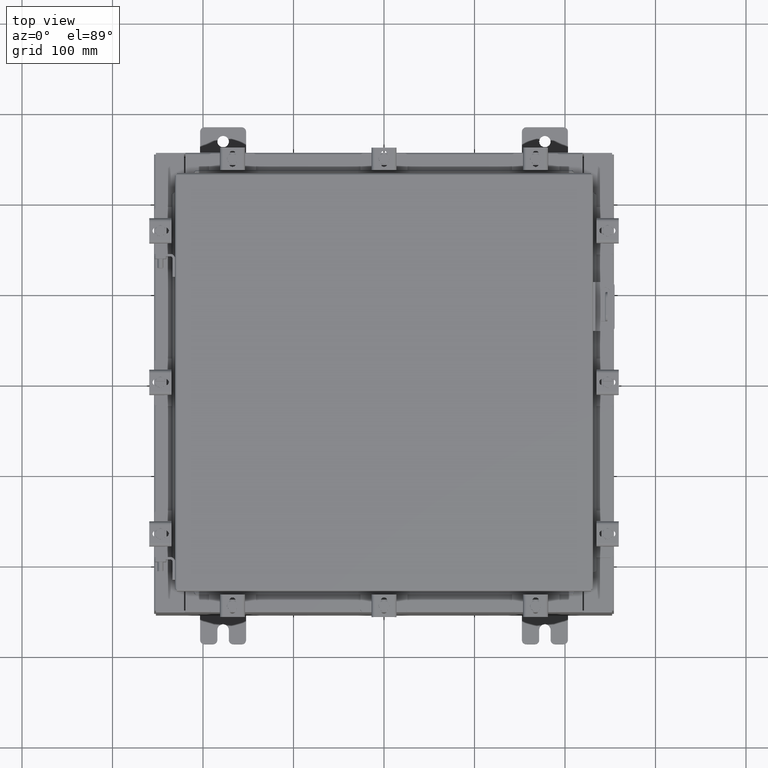
[diagram: clean part render]
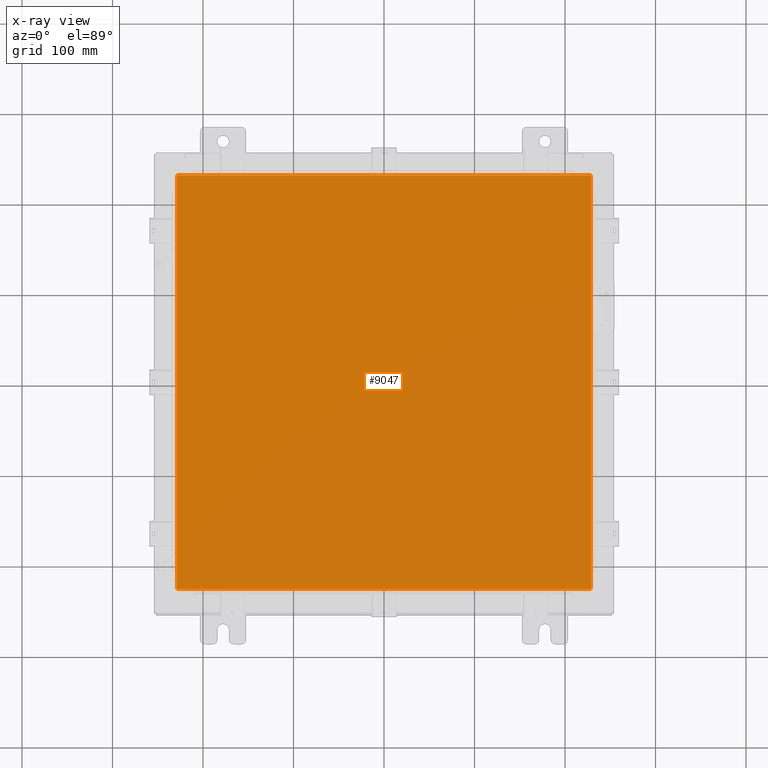
[diagram: x-ray — body ghosted, one internal face saturated and labeled with its STEP entity id]
A machine part, top view, then the same camera in x-ray: the body is ghosted and one INTERNAL B-rep face — a face not visible from any outside direction — is saturated and labeled: STEP entity #9047.
In plain terms, the highlighted planar face has unit normal (0, 0, -1).
Its self-contained STEP definition (entity closure, byte-faithful):
#1477 = CARTESIAN_POINT ( 'NONE',  ( 9.006300000000001300, 9.006299999999999500, -0.07470000000000015500 ) ) ;
#1818 = CARTESIAN_POINT ( 'NONE',  ( 9.006299999999999500, 9.006299999999999500, -0.07470000000000015500 ) ) ;
#2196 = EDGE_CURVE ( 'NONE', #15604, #19512, #5671, .T. ) ;
#3299 = LINE ( 'NONE', #1477, #21381 ) ;
#4103 = EDGE_CURVE ( 'NONE', #17916, #15604, #22260, .T. ) ;
#5132 = VECTOR ( 'NONE', #20630, 39.37007874015748100 ) ;
#5671 = LINE ( 'NONE', #22254, #19098 ) ;
#8186 = EDGE_CURVE ( 'NONE', #11100, #17916, #19101, .T. ) ;
#8306 = AXIS2_PLACEMENT_3D ( 'NONE', #17397, #10435, #10557 ) ;
#8368 = VECTOR ( 'NONE', #21778, 39.37007874015748100 ) ;
#8503 = CARTESIAN_POINT ( 'NONE',  ( -9.006299999999997800, -9.006299999999999500, -0.07470000000000015500 ) ) ;
#9000 = EDGE_LOOP ( 'NONE', ( #18463, #20192, #14112, #16232 ) ) ;
#9047 = ADVANCED_FACE ( 'NONE', ( #21236 ), #22533, .T. ) ;
#10078 = CARTESIAN_POINT ( 'NONE',  ( -9.006299999999997800, 9.006299999999999500, -0.07470000000000125200 ) ) ;
#10335 = CARTESIAN_POINT ( 'NONE',  ( -9.006299999999997800, 9.006299999999997800, -0.07470000000000015500 ) ) ;
#10435 = DIRECTION ( 'NONE',  ( 0.0000000000000000000, 0.0000000000000000000, -1.000000000000000000 ) ) ;
#10557 = DIRECTION ( 'NONE',  ( -1.000000000000000000, 0.0000000000000000000, -0.0000000000000000000 ) ) ;
#11100 = VERTEX_POINT ( 'NONE', #10335 ) ;
#13325 = DIRECTION ( 'NONE',  ( 0.0000000000000000000, 1.000000000000000000, 0.0000000000000000000 ) ) ;
#14112 = ORIENTED_EDGE ( 'NONE', *, *, #8186, .F. ) ;
#14416 = CARTESIAN_POINT ( 'NONE',  ( 9.006300000000001300, -9.006299999999999500, -0.07470000000000015500 ) ) ;
#15604 = VERTEX_POINT ( 'NONE', #14416 ) ;
#16232 = ORIENTED_EDGE ( 'NONE', *, *, #18547, .F. ) ;
#17397 = CARTESIAN_POINT ( 'NONE',  ( 0.0000000000000000000, 0.0000000000000000000, -0.07470000000000015500 ) ) ;
#17916 = VERTEX_POINT ( 'NONE', #8503 ) ;
#18463 = ORIENTED_EDGE ( 'NONE', *, *, #2196, .F. ) ;
#18547 = EDGE_CURVE ( 'NONE', #19512, #11100, #3299, .T. ) ;
#19098 = VECTOR ( 'NONE', #13325, 39.37007874015748100 ) ;
#19101 = LINE ( 'NONE', #10078, #5132 ) ;
#19512 = VERTEX_POINT ( 'NONE', #1818 ) ;
#20192 = ORIENTED_EDGE ( 'NONE', *, *, #4103, .F. ) ;
#20630 = DIRECTION ( 'NONE',  ( 0.0000000000000000000, -1.000000000000000000, 0.0000000000000000000 ) ) ;
#21236 = FACE_OUTER_BOUND ( 'NONE', #9000, .T. ) ;
#21381 = VECTOR ( 'NONE', #22371, 39.37007874015748100 ) ;
#21778 = DIRECTION ( 'NONE',  ( 1.000000000000000000, -0.0000000000000000000, -0.0000000000000000000 ) ) ;
#21857 = CARTESIAN_POINT ( 'NONE',  ( -9.006299999999997800, -9.006299999999999500, -0.07470000000000015500 ) ) ;
#22254 = CARTESIAN_POINT ( 'NONE',  ( 9.006300000000001300, -9.006299999999999500, -0.07470000000000015500 ) ) ;
#22260 = LINE ( 'NONE', #21857, #8368 ) ;
#22371 = DIRECTION ( 'NONE',  ( -1.000000000000000000, -0.0000000000000000000, -0.0000000000000000000 ) ) ;
#22533 = PLANE ( 'NONE',  #8306 ) ;